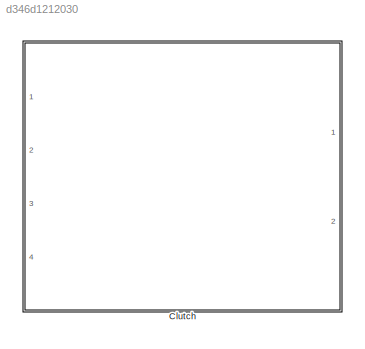
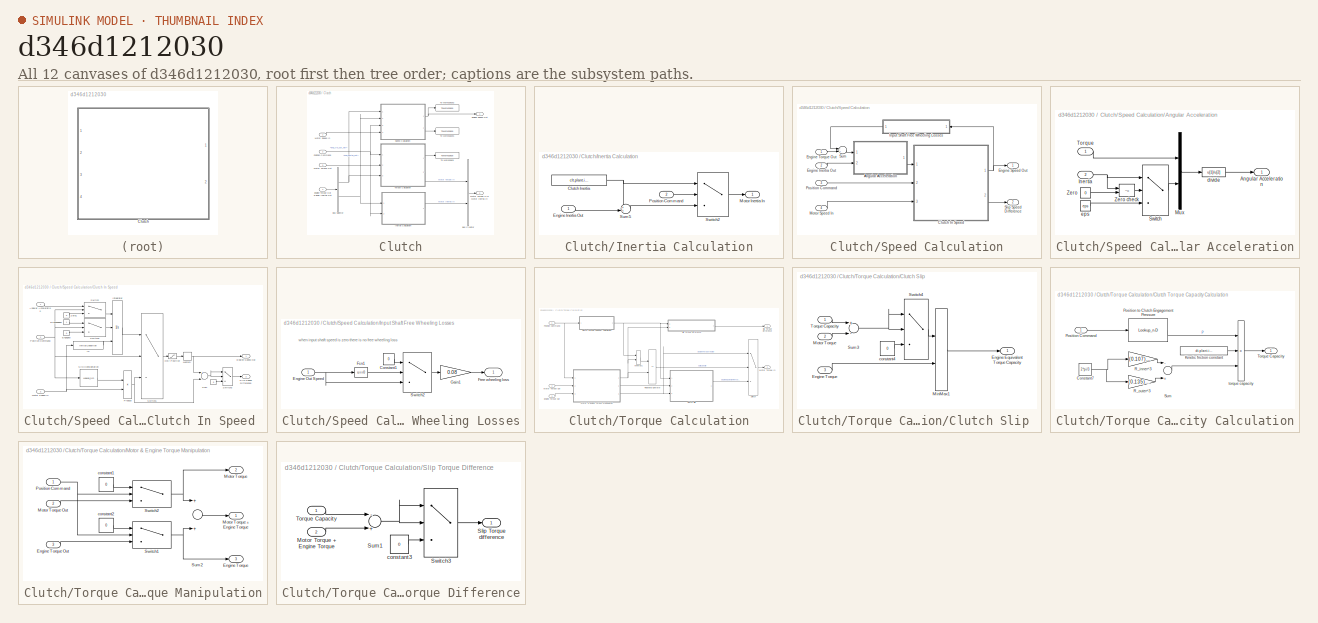
[diagram: thumbnail index - all 12 canvases of the model, root first then tree order]
MODEL slx_d346d1212030
KIND library
CONFIG AbsTol = auto
CONFIG EnableMultiTasking = off
CONFIG FixedStep = auto
CONFIG MaxStep = auto
CONFIG MinStep = auto
CONFIG RelTol = 1e-3
CONFIG SampleTimeConstraint = Unconstrained
CONFIG Solver = VariableStepAuto
CONFIG SolverName = VariableStepAuto
CONFIG StartTime = 0.0
CONFIG StopTime = 10.0
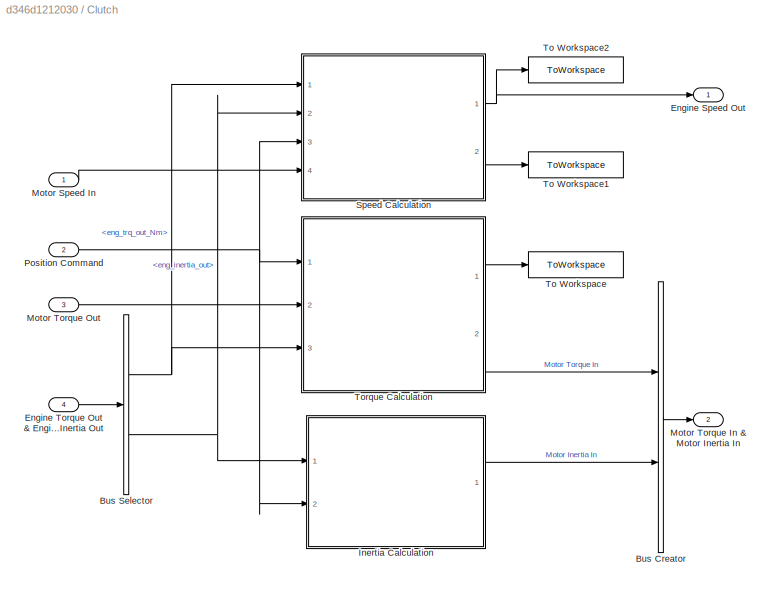
BLOCK [SubSystem] Clutch
  Ports = [4, 2]
  RequestExecContextInheritance = off
  Variant = off
BLOCK [BusCreator] Clutch/Bus Creator
  DisplayOption = bar
  InheritFromInputs = on
  Inputs = 2
  Ports = [2, 1]
BLOCK [BusSelector] Clutch/Bus Selector
  OutputAsBus = off
  OutputSignals = eng_trq_out_Nm,eng_inertia_out
  Ports = [1, 2]
BLOCK [Outport] Clutch/Engine Speed Out
  IconDisplay = Port number
BLOCK [Inport] Clutch/Engine Torque Out & Engine Inertia Out
  IconDisplay = Port number
  Port = 4
BLOCK [SubSystem] Clutch/Inertia Calculation
  Ports = [2, 1]
  RequestExecContextInheritance = off
  Variant = off
BLOCK [Constant] Clutch/Inertia Calculation/Clutch Inertia
  Value = clt.plant.init.inertia
BLOCK [Inport] Clutch/Inertia Calculation/Engine Inertia Out
  IconDisplay = Port number
BLOCK [Outport] Clutch/Inertia Calculation/Motor Inertia In
  IconDisplay = Port number
BLOCK [Inport] Clutch/Inertia Calculation/Position Command
  IconDisplay = Port number
  Port = 2
BLOCK [Sum] Clutch/Inertia Calculation/Sum5
  IconShape = round
  Inputs = ++|
  Ports = [2, 1]
BLOCK [Switch] Clutch/Inertia Calculation/Switch2
  Threshold = 1700
BLOCK [Inport] Clutch/Motor Speed In
  IconDisplay = Port number
BLOCK [Outport] Clutch/Motor Torque In & Motor Inertia In
  IconDisplay = Port number
  Port = 2
BLOCK [Inport] Clutch/Motor Torque Out
  IconDisplay = Port number
  Port = 3
BLOCK [Inport] Clutch/Position Command
  IconDisplay = Port number
  Port = 2
BLOCK [SubSystem] Clutch/Speed Calculation
  Ports = [4, 2]
  RequestExecContextInheritance = off
  Variant = off
BLOCK [SubSystem] Clutch/Speed Calculation/Angular Acceleration
  Ports = [2, 1]
  RequestExecContextInheritance = off
  Variant = off
BLOCK [Outport] Clutch/Speed Calculation/Angular Acceleration/Angular Acceleration
  IconDisplay = Port number
BLOCK [Inport] Clutch/Speed Calculation/Angular Acceleration/Inertia
  IconDisplay = Port number
  Port = 2
BLOCK [Mux] Clutch/Speed Calculation/Angular Acceleration/Mux
  DisplayOption = bar
  Inputs = 2
  Ports = [2, 1]
BLOCK [Switch] Clutch/Speed Calculation/Angular Acceleration/Switch
  Threshold = 0.5
BLOCK [Inport] Clutch/Speed Calculation/Angular Acceleration/Torque
  IconDisplay = Port number
BLOCK [Constant] Clutch/Speed Calculation/Angular Acceleration/Zero
  Value = 0
BLOCK [RelationalOperator] Clutch/Speed Calculation/Angular Acceleration/Zero check
  Operator = ~=
  Ports = [2, 1]
BLOCK [Fcn] Clutch/Speed Calculation/Angular Acceleration/divide
  Expr = u[1]/u[2]
BLOCK [Constant] Clutch/Speed Calculation/Angular Acceleration/eps
  Value = eps
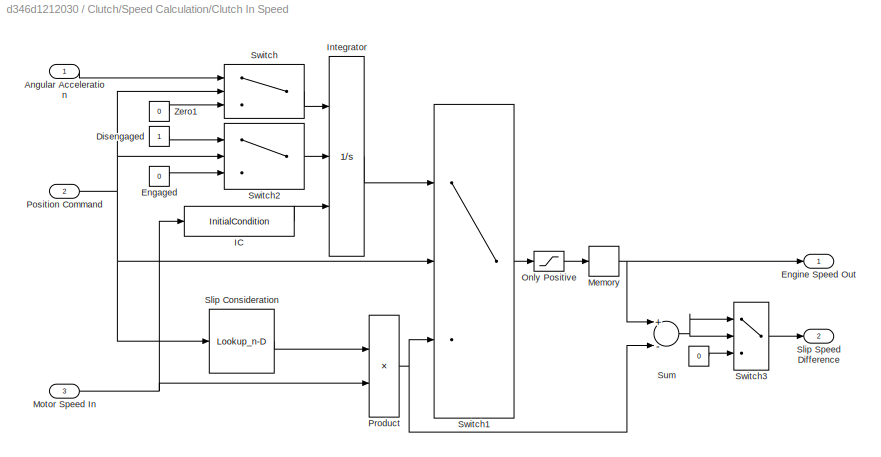
BLOCK [SubSystem] Clutch/Speed Calculation/Clutch In Speed 
  Ports = [3, 2]
  RequestExecContextInheritance = off
  Variant = off
BLOCK [Constant] Clutch/Speed Calculation/Clutch In Speed / 
  Value = 0
BLOCK [Inport] Clutch/Speed Calculation/Clutch In Speed /Angular Acceleration
  IconDisplay = Port number
BLOCK [Constant] Clutch/Speed Calculation/Clutch In Speed /Disengaged
BLOCK [Constant] Clutch/Speed Calculation/Clutch In Speed /Engaged
  Value = 0
BLOCK [Outport] Clutch/Speed Calculation/Clutch In Speed /Engine Speed Out
  IconDisplay = Port number
BLOCK [InitialCondition] Clutch/Speed Calculation/Clutch In Speed /IC
  Value = clt.plant.init.spd_idle
BLOCK [Integrator] Clutch/Speed Calculation/Clutch In Speed /Integrator
  AbsoluteTolerance = 1e-3
  ExternalReset = either
  InitialConditionSource = external
  LimitOutput = on
  LowerSaturationLimit = 0
  Ports = [3, 1]
BLOCK [Memory] Clutch/Speed Calculation/Clutch In Speed /Memory
BLOCK [Inport] Clutch/Speed Calculation/Clutch In Speed /Motor Speed In
  IconDisplay = Port number
  Port = 3
BLOCK [Saturate] Clutch/Speed Calculation/Clutch In Speed /Only Positive
  InputPortMap = u0
  LowerLimit = 0
  Ports = [1, 1]
  UpperLimit = inf
BLOCK [Inport] Clutch/Speed Calculation/Clutch In Speed /Position Command
  IconDisplay = Port number
  Port = 2
BLOCK [Product] Clutch/Speed Calculation/Clutch In Speed /Product
  InputSameDT = off
  OutDataTypeStr = Inherit: Inherit via internal rule
  Ports = [2, 1]
  RndMeth = Floor
  SaturateOnIntegerOverflow = off
BLOCK [Lookup_n-D] Clutch/Speed Calculation/Clutch In Speed /Slip Consideration
  BreakpointsForDimension1 = [0\n100\n200\n300\n400\n500\n600\n700\n800\n900\n1000\n1100\n1200\n1300\n1400\n1500\n1600\n1700\n1800\n1900\n2000\n2100\n2200\n2300\n2400\n2500\n2600\n2700\n2800\n2900\n3000\n3100\n3200\n3300\n3400\n3500\n3600\n3700\n3800\n3900\n4000\n4100\n4200\n4300\n4400\n4500\n4600\n4700\n4800\n4900\n5000\n5100\n5200\n5300\n5400\n5500\n5600\n5700\n5800\n5900\n6000\n6100\n6200\n6300\n6400]
  InternalRulePriority = Speed
  NumberOfTableDimensions = 1
  Ports = [1, 1]
  RndMeth = Simplest
  Table = [1\n1\n1\n0.934\n0.868\n0.802\n0.736\n0.67\n0.604\n0.538\n0.472\n0.406\n0.34\n0.274\n0.208\n0.142\n0.076\n0\n0\n0\n0\n0\n0\n0\n0\n0\n0\n0\n0\n0\n0\n0\n0\n0\n0\n0\n0\n0\n0\n0\n0\n0\n0\n0\n0\n0\n0\n0\n0\n0\n0\n0\n0\n0\n0\n0\n0\n0\n0\n0\n0\n0\n0\n0\n0]
BLOCK [Outport] Clutch/Speed Calculation/Clutch In Speed /Slip Speed Difference
  IconDisplay = Port number
  Port = 2
BLOCK [Sum] Clutch/Speed Calculation/Clutch In Speed /Sum
  InputSameDT = off
  Inputs = +-
  OutDataTypeStr = Inherit: Inherit via internal rule
  Ports = [2, 1]
  SaturateOnIntegerOverflow = off
BLOCK [Switch] Clutch/Speed Calculation/Clutch In Speed /Switch
  Threshold = 1700
BLOCK [Switch] Clutch/Speed Calculation/Clutch In Speed /Switch1
  Threshold = 1700
BLOCK [Switch] Clutch/Speed Calculation/Clutch In Speed /Switch2
  Threshold = 1700
BLOCK [Switch] Clutch/Speed Calculation/Clutch In Speed /Switch3
  Criteria = u2 > Threshold
BLOCK [Constant] Clutch/Speed Calculation/Clutch In Speed /Zero1
  Value = 0
BLOCK [Inport] Clutch/Speed Calculation/Engine Inertia Out
  IconDisplay = Port number
  Port = 2
BLOCK [Outport] Clutch/Speed Calculation/Engine Speed Out
  IconDisplay = Port number
BLOCK [Inport] Clutch/Speed Calculation/Engine Torque Out
  IconDisplay = Port number
BLOCK [SubSystem] Clutch/Speed Calculation/Input Shaft Free Wheeling Losses
  Ports = [1, 1]
  RequestExecContextInheritance = off
  Variant = off
BLOCK [Constant] Clutch/Speed Calculation/Input Shaft Free Wheeling Losses/Constant1
  Value = 0
BLOCK [Inport] Clutch/Speed Calculation/Input Shaft Free Wheeling Losses/Engine Out Speed
  IconDisplay = Port number
BLOCK [Fcn] Clutch/Speed Calculation/Input Shaft Free Wheeling Losses/Fcn1
  Expr = u==0
BLOCK [Outport] Clutch/Speed Calculation/Input Shaft Free Wheeling Losses/Free wheeling loss
  IconDisplay = Port number
BLOCK [Gain] Clutch/Speed Calculation/Input Shaft Free Wheeling Losses/Gain1
  Gain = 0.08
BLOCK [Switch] Clutch/Speed Calculation/Input Shaft Free Wheeling Losses/Switch2
  Threshold = 0.5
BLOCK [Inport] Clutch/Speed Calculation/Motor Speed In
  IconDisplay = Port number
  Port = 4
BLOCK [Inport] Clutch/Speed Calculation/Position Command
  IconDisplay = Port number
  Port = 3
BLOCK [Outport] Clutch/Speed Calculation/Slip Speed Difference
  IconDisplay = Port number
  Port = 2
BLOCK [Sum] Clutch/Speed Calculation/Sum
  InputSameDT = off
  Inputs = -+
  OutDataTypeStr = Inherit: Inherit via internal rule
  Ports = [2, 1]
  SaturateOnIntegerOverflow = off
BLOCK [ToWorkspace] Clutch/To Workspace
  FixptAsFi = on
  MaxDataPoints = inf
  Ports = [1]
  SampleTime = -1
  Save2DSignal = 3-D array (concatenate along third dimension)
  SaveFormat = Timeseries
  VariableName = clt_plant_trq_slip
BLOCK [ToWorkspace] Clutch/To Workspace1
  FixptAsFi = on
  MaxDataPoints = inf
  Ports = [1]
  SampleTime = -1
  Save2DSignal = 3-D array (concatenate along third dimension)
  SaveFormat = Timeseries
  VariableName = clt_plant_spd_slip
BLOCK [ToWorkspace] Clutch/To Workspace2
  FixptAsFi = on
  MaxDataPoints = inf
  Ports = [1]
  SampleTime = -1
  Save2DSignal = 3-D array (concatenate along third dimension)
  SaveFormat = Timeseries
  VariableName = clt_plant_spd_RPM
BLOCK [SubSystem] Clutch/Torque Calculation
  Ports = [3, 2]
  RequestExecContextInheritance = off
  Variant = off
BLOCK [SubSystem] Clutch/Torque Calculation/Clutch Slip 
  Ports = [3, 1]
  RequestExecContextInheritance = off
  Variant = off
BLOCK [Outport] Clutch/Torque Calculation/Clutch Slip /Engine Equivalent Torque Capacity
  IconDisplay = Port number
BLOCK [Inport] Clutch/Torque Calculation/Clutch Slip /Engine Torque
  IconDisplay = Port number
  Port = 3
BLOCK [MinMax] Clutch/Torque Calculation/Clutch Slip /MinMax1
  InputSameDT = off
  Inputs = 2
  Ports = [2, 1]
  SaturateOnIntegerOverflow = off
BLOCK [Inport] Clutch/Torque Calculation/Clutch Slip /Motor Torque
  IconDisplay = Port number
  Port = 2
BLOCK [Sum] Clutch/Torque Calculation/Clutch Slip /Sum3
  InputSameDT = off
  Inputs = +-
  OutDataTypeStr = Inherit: Inherit via internal rule
  Ports = [2, 1]
  SaturateOnIntegerOverflow = off
BLOCK [Switch] Clutch/Torque Calculation/Clutch Slip /Switch4
  Criteria = u2 > Threshold
  InputSameDT = off
  SaturateOnIntegerOverflow = off
BLOCK [Inport] Clutch/Torque Calculation/Clutch Slip /Torque Capacity
  IconDisplay = Port number
BLOCK [Constant] Clutch/Torque Calculation/Clutch Slip /constant4
  Value = 0
BLOCK [SubSystem] Clutch/Torque Calculation/Clutch Torque Capacity Calculation
  Ports = [1, 1]
  RequestExecContextInheritance = off
  Variant = off
BLOCK [Constant] Clutch/Torque Calculation/Clutch Torque Capacity Calculation/Constant7
  Value = 2*pi/3
BLOCK [Constant] Clutch/Torque Calculation/Clutch Torque Capacity Calculation/Kinetic friction constant
  Value = clt.plant.init.friction_coeff
BLOCK [Inport] Clutch/Torque Calculation/Clutch Torque Capacity Calculation/Position Command
  IconDisplay = Port number
BLOCK [Lookup_n-D] Clutch/Torque Calculation/Clutch Torque Capacity Calculation/Position to Clutch Engagement Pressure
  BreakpointsForDimension1 = [0\n100\n200\n300\n400\n500\n600\n700\n800\n900\n1000\n1100\n1200\n1300\n1400\n1500\n1600\n1700\n1800\n1900\n2000\n2100\n2200\n2300\n2400\n2500\n2600\n2700\n2800\n2900\n3000\n3100\n3200\n3300\n3400\n3500\n3600\n3700\n3800\n3900\n4000\n4100\n4200\n4300\n4400\n4500\n4600\n4700\n4800\n4900\n5000\n5100\n5200\n5300\n5400\n5500\n5600\n5700\n5800\n5900\n6000\n6100\n6200\n6300\n6400\n\n]
  InternalRulePriority = Speed
  NumberOfTableDimensions = 1
  Ports = [1, 1]
  RndMeth = Simplest
  Table = [892800\n892800\n892800\n833280\n773760\n714240\n654720\n595200\n535680\n476160\n416640\n357120\n297600\n238080\n178560\n119040\n59520\n0\n0\n0\n0\n0\n0\n0\n0\n0\n0\n0\n0\n0\n0\n0\n0\n0\n0\n0\n0\n0\n0\n0\n0\n0\n0\n0\n0\n0\n0\n0\n0\n0\n0\n0\n0\n0\n0\n0\n0\n0\n0\n0\n0\n0\n0\n0\n0\n\n\n]
BLOCK [Gain] Clutch/Torque Calculation/Clutch Torque Capacity Calculation/R_inner^3
  Gain = (0.107)^3
  OutDataTypeStr = Inherit: Inherit via internal rule
  ParamDataTypeStr = Inherit: Inherit via internal rule
  SaturateOnIntegerOverflow = off
BLOCK [Gain] Clutch/Torque Calculation/Clutch Torque Capacity Calculation/R_outer^3
  Gain = (0.135)^3
  OutDataTypeStr = Inherit: Inherit via internal rule
  ParamDataTypeStr = Inherit: Inherit via internal rule
  SaturateOnIntegerOverflow = off
BLOCK [Sum] Clutch/Torque Calculation/Clutch Torque Capacity Calculation/Sum
  InputSameDT = off
  Inputs = -+
  OutDataTypeStr = Inherit: Inherit via internal rule
  Ports = [2, 1]
  SaturateOnIntegerOverflow = off
BLOCK [Outport] Clutch/Torque Calculation/Clutch Torque Capacity Calculation/Torque Capacity
  IconDisplay = Port number
BLOCK [Product] Clutch/Torque Calculation/Clutch Torque Capacity Calculation/torque capacity
  Inputs = 3
  Ports = [3, 1]
  RndMeth = Floor
BLOCK [Inport] Clutch/Torque Calculation/Engine Torque Out
  IconDisplay = Port number
  Port = 3
BLOCK [MinMax] Clutch/Torque Calculation/MinMax1
  InputSameDT = off
  Inputs = 2
  Ports = [2, 1]
  SaturateOnIntegerOverflow = off
BLOCK [SubSystem] Clutch/Torque Calculation/Motor & Engine Torque Manipulation
  Ports = [3, 3]
  RequestExecContextInheritance = off
  Variant = off
BLOCK [Outport] Clutch/Torque Calculation/Motor & Engine Torque Manipulation/Engine Torque
  IconDisplay = Port number
  Port = 3
BLOCK [Inport] Clutch/Torque Calculation/Motor & Engine Torque Manipulation/Engine Torque Out
  IconDisplay = Port number
  Port = 3
BLOCK [Outport] Clutch/Torque Calculation/Motor & Engine Torque Manipulation/Motor Torque
  IconDisplay = Port number
  Port = 2
BLOCK [Outport] Clutch/Torque Calculation/Motor & Engine Torque Manipulation/Motor Torque + Engine Torque
  IconDisplay = Port number
BLOCK [Inport] Clutch/Torque Calculation/Motor & Engine Torque Manipulation/Motor Torque Out
  IconDisplay = Port number
  Port = 2
BLOCK [Inport] Clutch/Torque Calculation/Motor & Engine Torque Manipulation/Position Command
  IconDisplay = Port number
BLOCK [Sum] Clutch/Torque Calculation/Motor & Engine Torque Manipulation/Sum2
  InputSameDT = off
  OutDataTypeStr = Inherit: Inherit via internal rule
  Ports = [2, 1]
  SaturateOnIntegerOverflow = off
BLOCK [Switch] Clutch/Torque Calculation/Motor & Engine Torque Manipulation/Switch1
  InputSameDT = off
  SaturateOnIntegerOverflow = off
  Threshold = 1700
BLOCK [Switch] Clutch/Torque Calculation/Motor & Engine Torque Manipulation/Switch2
  InputSameDT = off
  SaturateOnIntegerOverflow = off
  Threshold = 1700
BLOCK [Constant] Clutch/Torque Calculation/Motor & Engine Torque Manipulation/constant1
  Value = 0
BLOCK [Constant] Clutch/Torque Calculation/Motor & Engine Torque Manipulation/constant2
  Value = 0
BLOCK [Outport] Clutch/Torque Calculation/Motor Torque In
  IconDisplay = Port number
  Port = 2
BLOCK [Inport] Clutch/Torque Calculation/Motor Torque Out
  IconDisplay = Port number
  Port = 2
BLOCK [Inport] Clutch/Torque Calculation/Position Command
  IconDisplay = Port number
BLOCK [RelationalOperator] Clutch/Torque Calculation/Relational Operator
  InputSameDT = off
  Operator = ==
  OutDataTypeStr = boolean
  Ports = [2, 1]
  RndMeth = Simplest
BLOCK [SubSystem] Clutch/Torque Calculation/Slip Torque Difference
  Ports = [2, 1]
  RequestExecContextInheritance = off
  Variant = off
BLOCK [Inport] Clutch/Torque Calculation/Slip Torque Difference/Motor Torque + Engine Torque
  IconDisplay = Port number
  Port = 2
BLOCK [Outport] Clutch/Torque Calculation/Slip Torque Difference/Slip Torque difference
  IconDisplay = Port number
BLOCK [Sum] Clutch/Torque Calculation/Slip Torque Difference/Sum1
  InputSameDT = off
  Inputs = -+
  OutDataTypeStr = Inherit: Inherit via internal rule
  Ports = [2, 1]
  SaturateOnIntegerOverflow = off
BLOCK [Switch] Clutch/Torque Calculation/Slip Torque Difference/Switch3
  InputSameDT = off
  SaturateOnIntegerOverflow = off
BLOCK [Inport] Clutch/Torque Calculation/Slip Torque Difference/Torque Capacity
  IconDisplay = Port number
BLOCK [Constant] Clutch/Torque Calculation/Slip Torque Difference/constant3
  Value = 0
BLOCK [Outport] Clutch/Torque Calculation/Slip Torque difference
  IconDisplay = Port number
BLOCK [Switch] Clutch/Torque Calculation/Switch
  Criteria = u2 ~= 0
  InputSameDT = off
  SaturateOnIntegerOverflow = off
ANNOTATION Clutch/Speed Calculation/Input Shaft Free Wheeling Losses: when input shaft speed is zero there is no free wheeling loss
LINE Clutch/Bus Creator:1 -> Clutch/Motor Torque In & Motor Inertia In:1
NET Clutch/Bus Selector:1 -> Clutch/Speed Calculation:1, Clutch/Torque Calculation:3
NET Clutch/Bus Selector:2 -> Clutch/Inertia Calculation:1, Clutch/Speed Calculation:2
LINE Clutch/Engine Torque Out & Engine Inertia Out:1 -> Clutch/Bus Selector:1
NET Clutch/Inertia Calculation/Clutch Inertia:1 -> Clutch/Inertia Calculation/Sum5:1, Clutch/Inertia Calculation/Switch2:1
LINE Clutch/Inertia Calculation/Engine Inertia Out:1 -> Clutch/Inertia Calculation/Sum5:2
LINE Clutch/Inertia Calculation/Position Command:1 -> Clutch/Inertia Calculation/Switch2:2
LINE Clutch/Inertia Calculation/Sum5:1 -> Clutch/Inertia Calculation/Switch2:3
LINE Clutch/Inertia Calculation/Switch2:1 -> Clutch/Inertia Calculation/Motor Inertia In:1
LINE Clutch/Inertia Calculation:1 -> Clutch/Bus Creator:2
LINE Clutch/Motor Speed In:1 -> Clutch/Speed Calculation:4
LINE Clutch/Motor Torque Out:1 -> Clutch/Torque Calculation:2
NET Clutch/Position Command:1 -> Clutch/Inertia Calculation:2, Clutch/Speed Calculation:3, Clutch/Torque Calculation:1
NET Clutch/Speed Calculation/Angular Acceleration/Inertia:1 -> Clutch/Speed Calculation/Angular Acceleration/Switch:1, Clutch/Speed Calculation/Angular Acceleration/Zero check:1
LINE Clutch/Speed Calculation/Angular Acceleration/Mux:1 -> Clutch/Speed Calculation/Angular Acceleration/divide:1
LINE Clutch/Speed Calculation/Angular Acceleration/Switch:1 -> Clutch/Speed Calculation/Angular Acceleration/Mux:2
LINE Clutch/Speed Calculation/Angular Acceleration/Torque:1 -> Clutch/Speed Calculation/Angular Acceleration/Mux:1
LINE Clutch/Speed Calculation/Angular Acceleration/Zero check:1 -> Clutch/Speed Calculation/Angular Acceleration/Switch:2
LINE Clutch/Speed Calculation/Angular Acceleration/Zero:1 -> Clutch/Speed Calculation/Angular Acceleration/Zero check:2
LINE Clutch/Speed Calculation/Angular Acceleration/divide:1 -> Clutch/Speed Calculation/Angular Acceleration/Angular Acceleration:1
LINE Clutch/Speed Calculation/Angular Acceleration/eps:1 -> Clutch/Speed Calculation/Angular Acceleration/Switch:3
LINE Clutch/Speed Calculation/Angular Acceleration:1 -> Clutch/Speed Calculation/Clutch In Speed :1
LINE Clutch/Speed Calculation/Clutch In Speed / :1 -> Clutch/Speed Calculation/Clutch In Speed /Switch3:3
LINE Clutch/Speed Calculation/Clutch In Speed /Angular Acceleration:1 -> Clutch/Speed Calculation/Clutch In Speed /Switch:1
LINE Clutch/Speed Calculation/Clutch In Speed /Disengaged:1 -> Clutch/Speed Calculation/Clutch In Speed /Switch2:1
LINE Clutch/Speed Calculation/Clutch In Speed /Engaged:1 -> Clutch/Speed Calculation/Clutch In Speed /Switch2:3
LINE Clutch/Speed Calculation/Clutch In Speed /IC:1 -> Clutch/Speed Calculation/Clutch In Speed /Integrator:3
LINE Clutch/Speed Calculation/Clutch In Speed /Integrator:1 -> Clutch/Speed Calculation/Clutch In Speed /Switch1:1
NET Clutch/Speed Calculation/Clutch In Speed /Memory:1 -> Clutch/Speed Calculation/Clutch In Speed /Engine Speed Out:1, Clutch/Speed Calculation/Clutch In Speed /Sum:1
NET Clutch/Speed Calculation/Clutch In Speed /Motor Speed In:1 -> Clutch/Speed Calculation/Clutch In Speed /IC:1, Clutch/Speed Calculation/Clutch In Speed /Product:2
LINE Clutch/Speed Calculation/Clutch In Speed /Only Positive:1 -> Clutch/Speed Calculation/Clutch In Speed /Memory:1
NET Clutch/Speed Calculation/Clutch In Speed /Position Command:1 -> Clutch/Speed Calculation/Clutch In Speed /Slip Consideration:1, Clutch/Speed Calculation/Clutch In Speed /Switch1:2, Clutch/Speed Calculation/Clutch In Speed /Switch2:2, Clutch/Speed Calculation/Clutch In Speed /Switch:2
NET Clutch/Speed Calculation/Clutch In Speed /Product:1 -> Clutch/Speed Calculation/Clutch In Speed /Sum:2, Clutch/Speed Calculation/Clutch In Speed /Switch1:3
LINE Clutch/Speed Calculation/Clutch In Speed /Slip Consideration:1 -> Clutch/Speed Calculation/Clutch In Speed /Product:1
NET Clutch/Speed Calculation/Clutch In Speed /Sum:1 -> Clutch/Speed Calculation/Clutch In Speed /Switch3:1, Clutch/Speed Calculation/Clutch In Speed /Switch3:2
LINE Clutch/Speed Calculation/Clutch In Speed /Switch1:1 -> Clutch/Speed Calculation/Clutch In Speed /Only Positive:1
LINE Clutch/Speed Calculation/Clutch In Speed /Switch2:1 -> Clutch/Speed Calculation/Clutch In Speed /Integrator:2
LINE Clutch/Speed Calculation/Clutch In Speed /Switch3:1 -> Clutch/Speed Calculation/Clutch In Speed /Slip Speed Difference:1
LINE Clutch/Speed Calculation/Clutch In Speed /Switch:1 -> Clutch/Speed Calculation/Clutch In Speed /Integrator:1
LINE Clutch/Speed Calculation/Clutch In Speed /Zero1:1 -> Clutch/Speed Calculation/Clutch In Speed /Switch:3
NET Clutch/Speed Calculation/Clutch In Speed :1 -> Clutch/Speed Calculation/Engine Speed Out:1, Clutch/Speed Calculation/Input Shaft Free Wheeling Losses:1
LINE Clutch/Speed Calculation/Clutch In Speed :2 -> Clutch/Speed Calculation/Slip Speed Difference:1
LINE Clutch/Speed Calculation/Engine Inertia Out:1 -> Clutch/Speed Calculation/Angular Acceleration:2
LINE Clutch/Speed Calculation/Engine Torque Out:1 -> Clutch/Speed Calculation/Sum:2
LINE Clutch/Speed Calculation/Input Shaft Free Wheeling Losses/Constant1:1 -> Clutch/Speed Calculation/Input Shaft Free Wheeling Losses/Switch2:1
NET Clutch/Speed Calculation/Input Shaft Free Wheeling Losses/Engine Out Speed:1 -> Clutch/Speed Calculation/Input Shaft Free Wheeling Losses/Fcn1:1, Clutch/Speed Calculation/Input Shaft Free Wheeling Losses/Switch2:3
LINE Clutch/Speed Calculation/Input Shaft Free Wheeling Losses/Fcn1:1 -> Clutch/Speed Calculation/Input Shaft Free Wheeling Losses/Switch2:2
LINE Clutch/Speed Calculation/Input Shaft Free Wheeling Losses/Gain1:1 -> Clutch/Speed Calculation/Input Shaft Free Wheeling Losses/Free wheeling loss:1
LINE Clutch/Speed Calculation/Input Shaft Free Wheeling Losses/Switch2:1 -> Clutch/Speed Calculation/Input Shaft Free Wheeling Losses/Gain1:1
LINE Clutch/Speed Calculation/Input Shaft Free Wheeling Losses:1 -> Clutch/Speed Calculation/Sum:1
LINE Clutch/Speed Calculation/Motor Speed In:1 -> Clutch/Speed Calculation/Clutch In Speed :3
LINE Clutch/Speed Calculation/Position Command:1 -> Clutch/Speed Calculation/Clutch In Speed :2
LINE Clutch/Speed Calculation/Sum:1 -> Clutch/Speed Calculation/Angular Acceleration:1
NET Clutch/Speed Calculation:1 -> Clutch/Engine Speed Out:1, Clutch/To Workspace2:1
LINE Clutch/Speed Calculation:2 -> Clutch/To Workspace1:1
LINE Clutch/Torque Calculation/Clutch Slip /Engine Torque:1 -> Clutch/Torque Calculation/Clutch Slip /MinMax1:2
LINE Clutch/Torque Calculation/Clutch Slip /MinMax1:1 -> Clutch/Torque Calculation/Clutch Slip /Engine Equivalent Torque Capacity:1
LINE Clutch/Torque Calculation/Clutch Slip /Motor Torque:1 -> Clutch/Torque Calculation/Clutch Slip /Sum3:2
NET Clutch/Torque Calculation/Clutch Slip /Sum3:1 -> Clutch/Torque Calculation/Clutch Slip /Switch4:1, Clutch/Torque Calculation/Clutch Slip /Switch4:2
LINE Clutch/Torque Calculation/Clutch Slip /Switch4:1 -> Clutch/Torque Calculation/Clutch Slip /MinMax1:1
LINE Clutch/Torque Calculation/Clutch Slip /Torque Capacity:1 -> Clutch/Torque Calculation/Clutch Slip /Sum3:1
LINE Clutch/Torque Calculation/Clutch Slip /constant4:1 -> Clutch/Torque Calculation/Clutch Slip /Switch4:3
LINE Clutch/Torque Calculation/Clutch Slip :1 -> Clutch/Torque Calculation/Switch:3
NET Clutch/Torque Calculation/Clutch Torque Capacity Calculation/Constant7:1 -> Clutch/Torque Calculation/Clutch Torque Capacity Calculation/R_inner^3:1, Clutch/Torque Calculation/Clutch Torque Capacity Calculation/R_outer^3:1
LINE Clutch/Torque Calculation/Clutch Torque Capacity Calculation/Kinetic friction constant:1 -> Clutch/Torque Calculation/Clutch Torque Capacity Calculation/torque capacity:2
LINE Clutch/Torque Calculation/Clutch Torque Capacity Calculation/Position Command:1 -> Clutch/Torque Calculation/Clutch Torque Capacity Calculation/Position to Clutch Engagement Pressure:1
LINE Clutch/Torque Calculation/Clutch Torque Capacity Calculation/Position to Clutch Engagement Pressure:1 -> Clutch/Torque Calculation/Clutch Torque Capacity Calculation/torque capacity:1
LINE Clutch/Torque Calculation/Clutch Torque Capacity Calculation/R_inner^3:1 -> Clutch/Torque Calculation/Clutch Torque Capacity Calculation/Sum:1
LINE Clutch/Torque Calculation/Clutch Torque Capacity Calculation/R_outer^3:1 -> Clutch/Torque Calculation/Clutch Torque Capacity Calculation/Sum:2
LINE Clutch/Torque Calculation/Clutch Torque Capacity Calculation/Sum:1 -> Clutch/Torque Calculation/Clutch Torque Capacity Calculation/torque capacity:3
LINE Clutch/Torque Calculation/Clutch Torque Capacity Calculation/torque capacity:1 -> Clutch/Torque Calculation/Clutch Torque Capacity Calculation/Torque Capacity:1
NET Clutch/Torque Calculation/Clutch Torque Capacity Calculation:1 -> Clutch/Torque Calculation/Clutch Slip :1, Clutch/Torque Calculation/MinMax1:1, Clutch/Torque Calculation/Slip Torque Difference:1
LINE Clutch/Torque Calculation/Engine Torque Out:1 -> Clutch/Torque Calculation/Motor & Engine Torque Manipulation:3
LINE Clutch/Torque Calculation/MinMax1:1 -> Clutch/Torque Calculation/Relational Operator:1
LINE Clutch/Torque Calculation/Motor & Engine Torque Manipulation/Engine Torque Out:1 -> Clutch/Torque Calculation/Motor & Engine Torque Manipulation/Switch1:3
LINE Clutch/Torque Calculation/Motor & Engine Torque Manipulation/Motor Torque Out:1 -> Clutch/Torque Calculation/Motor & Engine Torque Manipulation/Switch2:3
NET Clutch/Torque Calculation/Motor & Engine Torque Manipulation/Position Command:1 -> Clutch/Torque Calculation/Motor & Engine Torque Manipulation/Switch1:2, Clutch/Torque Calculation/Motor & Engine Torque Manipulation/Switch2:2
LINE Clutch/Torque Calculation/Motor & Engine Torque Manipulation/Sum2:1 -> Clutch/Torque Calculation/Motor & Engine Torque Manipulation/Motor Torque + Engine Torque:1
NET Clutch/Torque Calculation/Motor & Engine Torque Manipulation/Switch1:1 -> Clutch/Torque Calculation/Motor & Engine Torque Manipulation/Engine Torque:1, Clutch/Torque Calculation/Motor & Engine Torque Manipulation/Sum2:2
NET Clutch/Torque Calculation/Motor & Engine Torque Manipulation/Switch2:1 -> Clutch/Torque Calculation/Motor & Engine Torque Manipulation/Motor Torque:1, Clutch/Torque Calculation/Motor & Engine Torque Manipulation/Sum2:1
LINE Clutch/Torque Calculation/Motor & Engine Torque Manipulation/constant1:1 -> Clutch/Torque Calculation/Motor & Engine Torque Manipulation/Switch2:1
LINE Clutch/Torque Calculation/Motor & Engine Torque Manipulation/constant2:1 -> Clutch/Torque Calculation/Motor & Engine Torque Manipulation/Switch1:1
NET Clutch/Torque Calculation/Motor & Engine Torque Manipulation:1 -> Clutch/Torque Calculation/MinMax1:2, Clutch/Torque Calculation/Relational Operator:2, Clutch/Torque Calculation/Slip Torque Difference:2
LINE Clutch/Torque Calculation/Motor & Engine Torque Manipulation:2 -> Clutch/Torque Calculation/Clutch Slip :2
NET Clutch/Torque Calculation/Motor & Engine Torque Manipulation:3 -> Clutch/Torque Calculation/Clutch Slip :3, Clutch/Torque Calculation/Switch:1
LINE Clutch/Torque Calculation/Motor Torque Out:1 -> Clutch/Torque Calculation/Motor & Engine Torque Manipulation:2
NET Clutch/Torque Calculation/Position Command:1 -> Clutch/Torque Calculation/Clutch Torque Capacity Calculation:1, Clutch/Torque Calculation/Motor & Engine Torque Manipulation:1
LINE Clutch/Torque Calculation/Relational Operator:1 -> Clutch/Torque Calculation/Switch:2
LINE Clutch/Torque Calculation/Slip Torque Difference/Motor Torque + Engine Torque:1 -> Clutch/Torque Calculation/Slip Torque Difference/Sum1:2
NET Clutch/Torque Calculation/Slip Torque Difference/Sum1:1 -> Clutch/Torque Calculation/Slip Torque Difference/Switch3:1, Clutch/Torque Calculation/Slip Torque Difference/Switch3:2
LINE Clutch/Torque Calculation/Slip Torque Difference/Switch3:1 -> Clutch/Torque Calculation/Slip Torque Difference/Slip Torque difference:1
LINE Clutch/Torque Calculation/Slip Torque Difference/Torque Capacity:1 -> Clutch/Torque Calculation/Slip Torque Difference/Sum1:1
LINE Clutch/Torque Calculation/Slip Torque Difference/constant3:1 -> Clutch/Torque Calculation/Slip Torque Difference/Switch3:3
LINE Clutch/Torque Calculation/Slip Torque Difference:1 -> Clutch/Torque Calculation/Slip Torque difference:1
LINE Clutch/Torque Calculation/Switch:1 -> Clutch/Torque Calculation/Motor Torque In:1
LINE Clutch/Torque Calculation:1 -> Clutch/To Workspace:1
LINE Clutch/Torque Calculation:2 -> Clutch/Bus Creator:1
note: NET lines group one-source signal fan-out (src -> all destinations, sorted); 1:1 wires keep LINE
